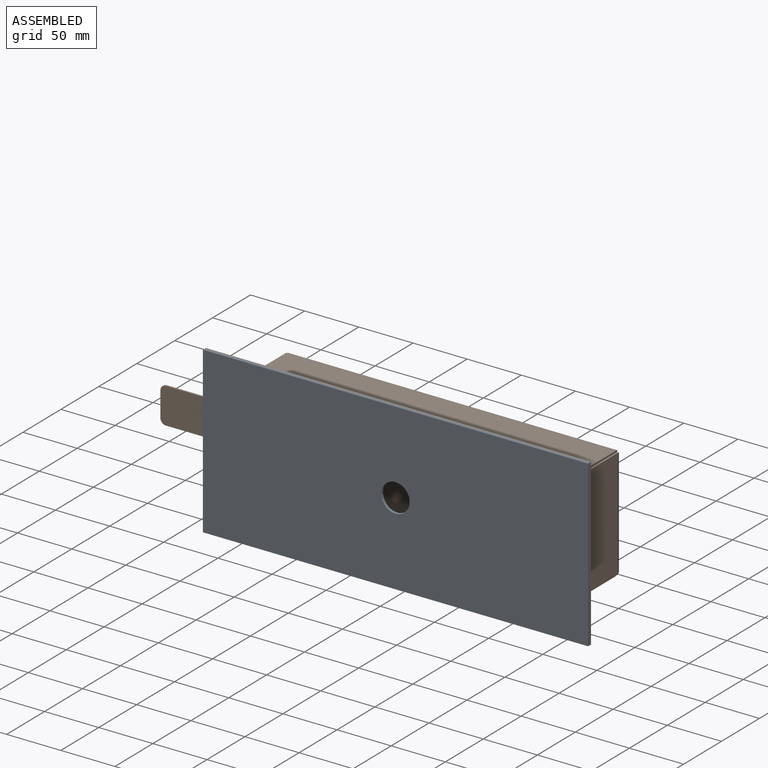
[diagram: assembled view]
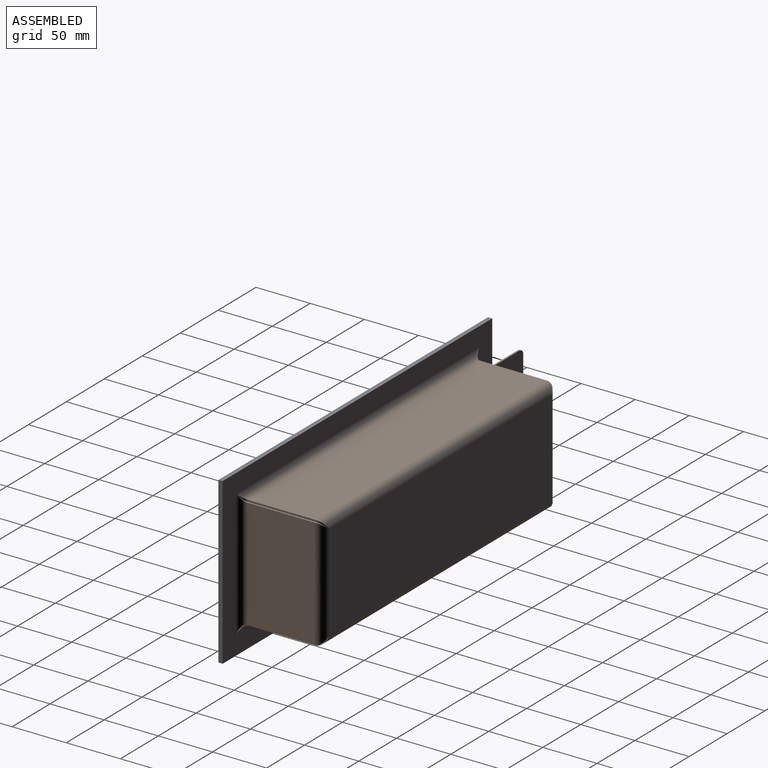
[diagram: assembled view, second angle]
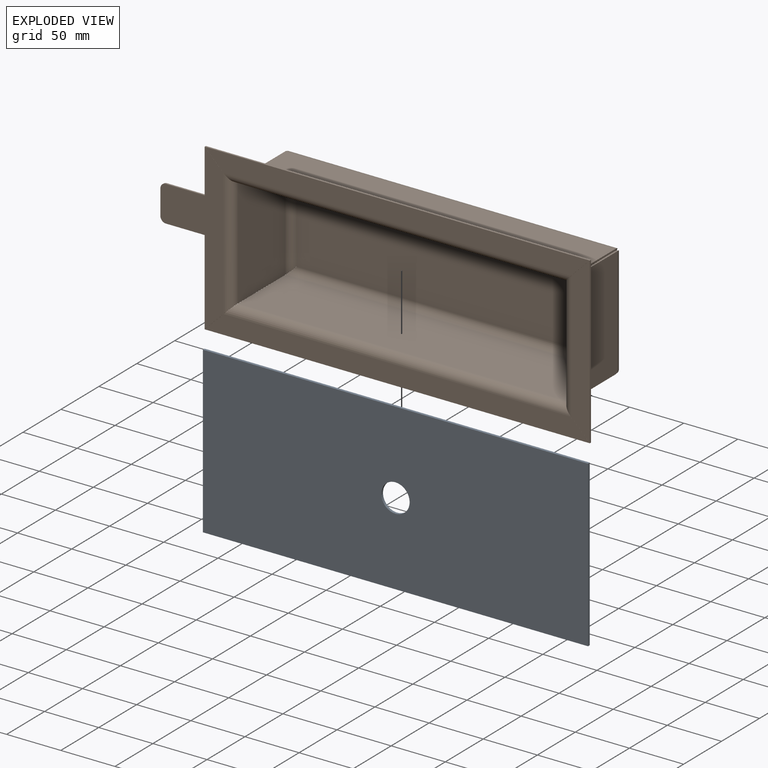
[diagram: exploded view]
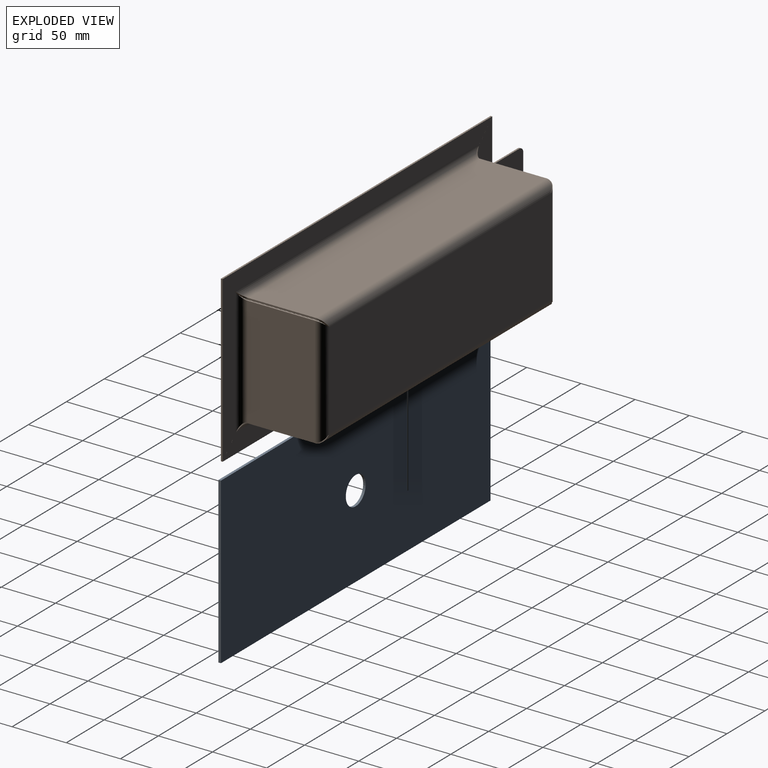
[diagram: exploded view, second angle]
ASSEMBLY  parts=2 mates=3
PART A: 7 faces, bbox 355.6x2.3x152.4 mm
  f0: plane 355.58x2.29mm, normal (0,0,-1), area 812.9mm2, adj f1,f3,f4,f5
  f1: plane 152.38x2.29mm, normal (1,0,0), area 348.3mm2, adj f0,f2,f4,f5
  f2: plane 355.58x2.29mm, normal (0,0,1), area 812.9mm2, adj f1,f3,f4,f5
  f3: plane 152.38x2.29mm, normal (-1,0,0), area 348.3mm2, adj f0,f2,f4,f5
  f4: plane 355.58x152.38mm, normal (0,-1,0), area 53645.4mm2, adj f0,f1,f2,f3,f6
  f5: plane 355.58x152.38mm, normal (0,1,0), area 53645.4mm2, adj f0,f1,f2,f3,f6
  f6: cylinder r=13.1mm len=26.2mm, axis (0,-1,0), area 188.1mm2, adj f4,f5
PART B: 80 faces, bbox 396.5x77.8x152.4 mm
  f0: plane 292.1x88.9mm, normal (0,1,0), area 25967.7mm2, adj f2,f3,f4,f5,f21,f38,f55,f78
  f1: plane 292.1x88.9mm, normal (0,-1,0), area 25967.7mm2, adj f2,f3,f4,f5,f22,f39,f56,f79
  f2: plane 1.59x0.02mm, normal (-0.71,0,-0.71), area 0mm2, adj f0,f1,f19,f77
  f3: plane 1.59x0.02mm, normal (-0.71,0,0.71), area 0mm2, adj f0,f1,f36,f76
  f4: plane 1.59x0.02mm, normal (0.71,0,0.71), area 0mm2, adj f0,f1,f37,f53
  f5: plane 1.59x0.02mm, normal (0.71,0,-0.71), area 0mm2, adj f0,f1,f20,f54
  f6: plane 61.91x1.59mm, normal (-1,0,0), area 98.3mm2, adj f8,f9,f15,f19
  f7: plane 61.91x1.59mm, normal (1,0,0), area 98.3mm2, adj f8,f9,f16,f20
  f8: plane 304.75x61.91mm, normal (0,0,-1), area 18867.8mm2, adj f6,f7,f18,f21
  f9: plane 304.75x61.91mm, normal (0,0,1), area 18867.8mm2, adj f6,f7,f17,f22
  f10: plane 355.56x1.59mm, normal (0,0,-1), area 564.5mm2, adj f11,f12,f13,f14
  f11: plane 17.46x17.46mm, normal (-0.71,0,0.71), area 39.2mm2, adj f10,f13,f14,f15
  f12: plane 17.46x17.46mm, normal (0.71,0,0.71), area 39.2mm2, adj f10,f13,f14,f16
  f13: plane 355.56x17.46mm, normal (0,1,0), area 5904.1mm2, adj f10,f11,f12,f18
  f14: plane 355.56x17.46mm, normal (0,-1,0), area 5904.1mm2, adj f10,f11,f12,f17
  f15: bspline ~7.95x7.94mm, area 22.4mm2, adj f6,f11,f17,f18
  f16: bspline ~7.95x7.94mm, area 22.4mm2, adj f7,f12,f17,f18
  f17: cylinder r=7.94mm len=320.64mm, axis (-1,0,0), area 3871.6mm2, adj f9,f14,f15,f16
  f18: cylinder r=6.35mm len=320.64mm, axis (-1,0,0), area 3097.4mm2, adj f8,f13,f15,f16
  f19: bspline ~7.94x7.94mm, area 20.9mm2, adj f2,f6,f21,f22
  f20: bspline ~7.94x7.94mm, area 21mm2, adj f5,f7,f21,f22
  f21: cylinder r=7.94mm len=304.75mm, axis (-1,0,0), area 3742.2mm2, adj f0,f8,f19,f20
  f22: cylinder r=6.35mm len=304.75mm, axis (-1,0,0), area 2993.8mm2, adj f1,f9,f19,f20
  f23: plane 61.91x1.59mm, normal (1,0,0), area 98.3mm2, adj f25,f26,f32,f37
  f24: plane 61.91x1.59mm, normal (-1,0,0), area 98.3mm2, adj f25,f26,f33,f36
  f25: plane 304.75x61.91mm, normal (0,0,1), area 18867.8mm2, adj f23,f24,f35,f38
  f26: plane 304.75x61.91mm, normal (0,0,-1), area 18867.8mm2, adj f23,f24,f34,f39
  f27: plane 355.56x1.59mm, normal (0,0,1), area 564.5mm2, adj f28,f29,f30,f31
  f28: plane 17.46x17.46mm, normal (0.71,0,-0.71), area 39.2mm2, adj f27,f30,f31,f32
  f29: plane 17.46x17.46mm, normal (-0.71,0,-0.71), area 39.2mm2, adj f27,f30,f31,f33
  f30: plane 355.56x17.46mm, normal (0,1,0), area 5904.1mm2, adj f27,f28,f29,f35
  f31: plane 355.56x17.46mm, normal (0,-1,0), area 5904.1mm2, adj f27,f28,f29,f34
  f32: bspline ~7.95x7.94mm, area 22.4mm2, adj f23,f28,f34,f35
  f33: bspline ~7.95x7.94mm, area 22.4mm2, adj f24,f29,f34,f35
  f34: cylinder r=7.94mm len=320.64mm, axis (1,0,0), area 3871.6mm2, adj f26,f31,f32,f33
  f35: cylinder r=6.35mm len=320.64mm, axis (1,0,0), area 3097.4mm2, adj f25,f30,f32,f33
  f36: bspline ~7.94x7.94mm, area 21mm2, adj f3,f24,f38,f39
  f37: bspline ~7.94x7.94mm, area 20.9mm2, adj f4,f23,f38,f39
  f38: cylinder r=7.94mm len=304.75mm, axis (-1,0,0), area 3742.2mm2, adj f0,f25,f36,f37
  f39: cylinder r=6.35mm len=304.75mm, axis (-1,0,0), area 2993.7mm2, adj f1,f26,f36,f37
  f40: plane 61.91x1.59mm, normal (0,0,-1), area 98.3mm2, adj f42,f43,f49,f54
  f41: plane 61.91x1.59mm, normal (0,0,1), area 98.3mm2, adj f42,f43,f50,f53
  f42: plane 101.55x61.91mm, normal (1,0,0), area 6287.2mm2, adj f40,f41,f52,f55
  f43: plane 101.55x61.91mm, normal (-1,0,0), area 6287.2mm2, adj f40,f41,f51,f56
  f44: plane 152.36x1.59mm, normal (1,0,0), area 241.9mm2, adj f45,f46,f47,f48
  f45: plane 17.46x17.46mm, normal (-0.71,0,-0.71), area 39.2mm2, adj f44,f47,f48,f49
  f46: plane 17.46x17.46mm, normal (-0.71,0,0.71), area 39.2mm2, adj f44,f47,f48,f50
  f47: plane 152.36x17.46mm, normal (0,1,0), area 2355.7mm2, adj f44,f45,f46,f52
  f48: plane 152.36x17.46mm, normal (0,-1,0), area 2355.7mm2, adj f44,f45,f46,f51
  f49: bspline ~7.95x7.94mm, area 22.4mm2, adj f40,f45,f51,f52
  f50: bspline ~7.95x7.94mm, area 22.4mm2, adj f41,f46,f51,f52
  f51: cylinder r=7.94mm len=117.44mm, axis (0,0,-1), area 1338.1mm2, adj f43,f48,f49,f50
  f52: cylinder r=6.35mm len=117.44mm, axis (0,0,-1), area 1070.5mm2, adj f42,f47,f49,f50
  f53: bspline ~7.94x7.94mm, area 21mm2, adj f4,f41,f55,f56
  f54: bspline ~7.94x7.94mm, area 20.9mm2, adj f5,f40,f55,f56
  f55: cylinder r=7.94mm len=101.55mm, axis (0,0,1), area 1208.7mm2, adj f0,f42,f53,f54
  f56: cylinder r=6.35mm len=101.55mm, axis (0,0,1), area 966.8mm2, adj f1,f43,f53,f54
  f57: plane 61.91x1.59mm, normal (0,0,1), area 98.3mm2, adj f59,f60,f72,f76
  f58: plane 61.91x1.59mm, normal (0,0,-1), area 98.3mm2, adj f59,f60,f73,f77
  f59: plane 101.55x61.91mm, normal (-1,0,0), area 6287.2mm2, adj f57,f58,f75,f78
  f60: plane 101.55x61.91mm, normal (1,0,0), area 6287.2mm2, adj f57,f58,f74,f79
  f61: plane 78.63x1.59mm, normal (-1,0,0), area 124.8mm2, adj f62,f67,f68,f69
  f62: plane 35.8x1.59mm, normal (0,0,-1), area 56.8mm2, adj f61,f68,f69,f71
  f63: plane 22.93x1.59mm, normal (-1,0,0), area 36.4mm2, adj f68,f69,f70,f71
  f64: plane 35.8x1.59mm, normal (0,0,1), area 56.8mm2, adj f65,f68,f69,f70
  f65: plane 40.65x1.59mm, normal (-1,0,0), area 64.5mm2, adj f64,f66,f68,f69
  f66: plane 17.46x17.46mm, normal (0.71,0,0.71), area 39.2mm2, adj f65,f68,f69,f72
  f67: plane 17.46x17.46mm, normal (0.71,0,-0.71), area 39.2mm2, adj f61,f68,f69,f73
  f68: plane 152.36x58.35mm, normal (0,1,0), area 3697.3mm2, adj f61,f62,f63,f64,f65,f66,f67,f70
  f69: plane 152.36x58.35mm, normal (0,-1,0), area 3697.3mm2, adj f61,f62,f63,f64,f65,f66,f67,f70
  f70: cylinder r=5.08mm len=5.08mm, axis (0,1,0), area 12.7mm2, adj f63,f64,f68,f69
  f71: cylinder r=5.08mm len=5.08mm, axis (0,-1,0), area 12.7mm2, adj f62,f63,f68,f69
  f72: bspline ~7.95x7.94mm, area 22.4mm2, adj f57,f66,f74,f75
  f73: bspline ~7.95x7.94mm, area 22.4mm2, adj f58,f67,f74,f75
  f74: cylinder r=7.94mm len=117.44mm, axis (0,0,1), area 1338.1mm2, adj f60,f69,f72,f73
  f75: cylinder r=6.35mm len=117.44mm, axis (0,0,1), area 1070.5mm2, adj f59,f68,f72,f73
  f76: bspline ~7.94x7.94mm, area 20.9mm2, adj f3,f57,f78,f79
  f77: bspline ~7.94x7.94mm, area 21mm2, adj f2,f58,f78,f79
  f78: cylinder r=7.94mm len=101.55mm, axis (0,0,1), area 1208.7mm2, adj f0,f59,f76,f77
  f79: cylinder r=6.35mm len=101.55mm, axis (0,0,1), area 966.9mm2, adj f1,f60,f76,f77
PLACE A t=(-0.02,0,0)mm
PLACE B at identity fixed
MATE planar A.f2 <-> B.f27  axis (0,0,1) through (-0.01,-78.93,76.2)mm
MATE planar A.f5 <-> B.f31  axis (0,1,0) through (-0.01,-77.79,76.2)mm
MATE planar A.f3 <-> B.f61  axis (-1,0,0) through (-177.8,-78.93,0.01)mm
